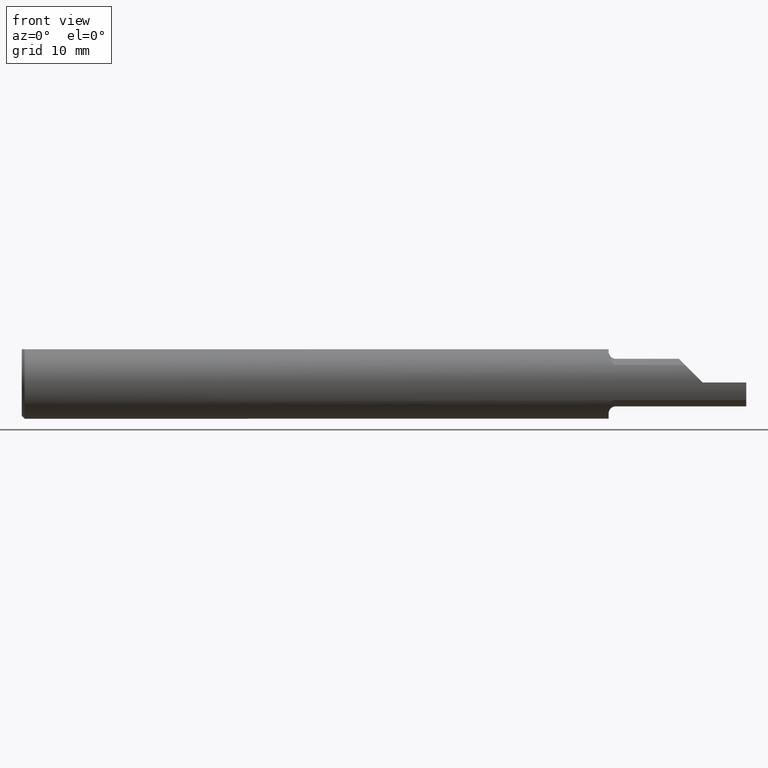
[diagram: clean part render]
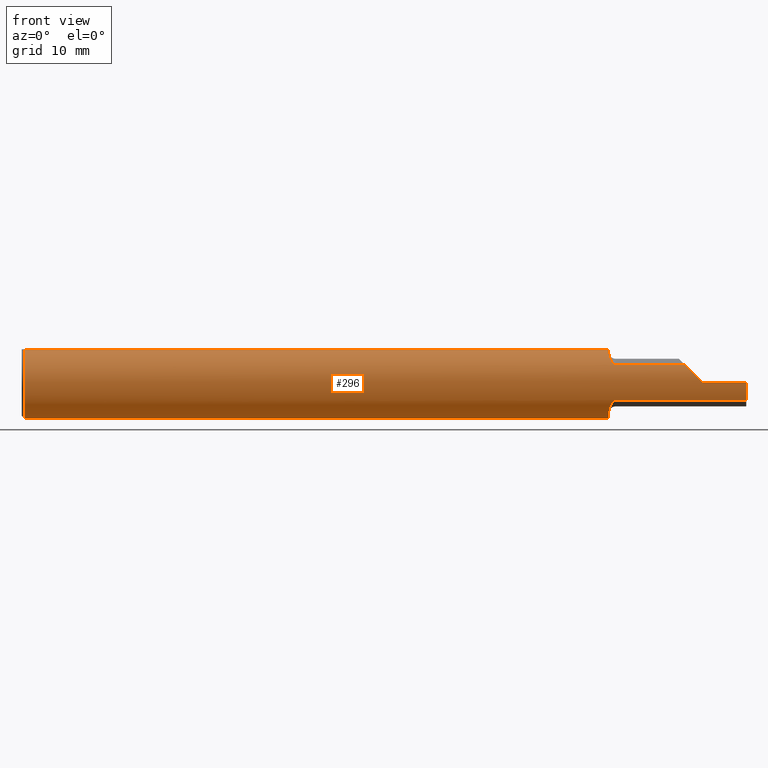
[diagram: same view with one face highlighted and labeled with its STEP entity id]
A machine part, front view. The second image highlights one B-rep face of the part: STEP entity #296.
In plain terms, the highlighted cylindrical surface (edge-blend (fillet) strip) has radius 3.1712 mm, axis along (-1, -0, -0).
Its self-contained STEP definition (entity closure, byte-faithful):
#3 = CARTESIAN_POINT ( 'NONE',  ( 2.024999999999999911, 0.04895916665957469188, 0.1148499999999999521 ) ) ;
#11 = LINE ( 'NONE', #331, #278 ) ;
#20 = ORIENTED_EDGE ( 'NONE', *, *, #344, .T. ) ;
#25 = CARTESIAN_POINT ( 'NONE',  ( 2.033707043473947707, -0.1002470790731815053, -0.07460645910502548828 ) ) ;
#28 = CARTESIAN_POINT ( 'NONE',  ( 2.289520233285355477, -0.1092232590529245567, 0.06047976671464379284 ) ) ;
#34 = EDGE_LOOP ( 'NONE', ( #710, #643, #20, #328, #319, #268, #786, #406, #513, #318, #74, #377, #75 ) ) ;
#44 = VERTEX_POINT ( 'NONE', #715 ) ;
#45 = EDGE_CURVE ( 'NONE', #346, #203, #547, .T. ) ;
#61 = EDGE_CURVE ( 'NONE', #279, #203, #414, .T. ) ;
#67 = CARTESIAN_POINT ( 'NONE',  ( 0.000000000000000000, 0.000000000000000000, 0.000000000000000000 ) ) ;
#71 =( BOUNDED_CURVE ( )  B_SPLINE_CURVE ( 3, ( #446, #197, #693, #28 ),
 .UNSPECIFIED., .F., .F. ) 
 B_SPLINE_CURVE_WITH_KNOTS ( ( 4, 4 ),
 ( 4.712388980384689674, 5.218088401039803870 ),
 .UNSPECIFIED. ) 
 CURVE ( )  GEOMETRIC_REPRESENTATION_ITEM ( )  RATIONAL_B_SPLINE_CURVE ( ( 1.000000000000000000, 0.9788023059027125550, 0.9788023059027125550, 1.000000000000000000 ) ) 
 REPRESENTATION_ITEM ( '' )  );
#72 = CARTESIAN_POINT ( 'NONE',  ( 2.024999999999999911, -0.06535139275765998457, 0.1063800637555461642 ) ) ;
#74 = ORIENTED_EDGE ( 'NONE', *, *, #61, .F. ) ;
#75 = ORIENTED_EDGE ( 'NONE', *, *, #330, .F. ) ;
#81 = CARTESIAN_POINT ( 'NONE',  ( 2.028216217036756586, -0.08893970397226937108, -0.08781254252886035172 ) ) ;
#89 = EDGE_CURVE ( 'NONE', #44, #623, #729, .T. ) ;
#92 = VERTEX_POINT ( 'NONE', #116 ) ;
#94 = CARTESIAN_POINT ( 'NONE',  ( 0.000000000000000000, -0.04895916665957469188, 0.1148499999999999521 ) ) ;
#111 = EDGE_CURVE ( 'NONE', #757, #346, #231, .T. ) ;
#116 = CARTESIAN_POINT ( 'NONE',  ( 2.289520233285355477, -0.1092232590529245567, 0.06047976671464379284 ) ) ;
#121 = CARTESIAN_POINT ( 'NONE',  ( 0.01000000000000014939, 0.04895916665957469188, 0.1148499999999999521 ) ) ;
#128 = CYLINDRICAL_SURFACE ( 'NONE', #669, 0.1248500000000000026 ) ;
#132 = DIRECTION ( 'NONE',  ( 0.000000000000000000, 1.000000000000000000, 0.000000000000000000 ) ) ;
#136 = CARTESIAN_POINT ( 'NONE',  ( 2.027023439373509817, -0.08470251846230676673, -0.09191816578021566597 ) ) ;
#142 = CARTESIAN_POINT ( 'NONE',  ( 2.024999999999999911, -0.07054286491584008112, -0.1031908389701643725 ) ) ;
#149 = CARTESIAN_POINT ( 'NONE',  ( 2.049999999999999822, -0.1092232590529244457, -0.06047976671464396631 ) ) ;
#150 = VERTEX_POINT ( 'NONE', #655 ) ;
#153 = AXIS2_PLACEMENT_3D ( 'NONE', #184, #432, #372 ) ;
#159 = DIRECTION ( 'NONE',  ( 0.000000000000000000, 0.000000000000000000, -1.000000000000000000 ) ) ;
#163 = DIRECTION ( 'NONE',  ( 0.000000000000000000, 0.000000000000000000, 1.000000000000000000 ) ) ;
#168 = DIRECTION ( 'NONE',  ( -1.000000000000000000, -0.000000000000000000, -0.000000000000000000 ) ) ;
#175 = CARTESIAN_POINT ( 'NONE',  ( 2.500000000000000000, 0.000000000000000000, 0.000000000000000000 ) ) ;
#177 = VECTOR ( 'NONE', #572, 39.37007874015748143 ) ;
#184 = CARTESIAN_POINT ( 'NONE',  ( 2.024999999999999911, 0.000000000000000000, 0.000000000000000000 ) ) ;
#192 = CARTESIAN_POINT ( 'NONE',  ( 2.028207506445967478, -0.08891621056625811925, 0.08783733555405218163 ) ) ;
#197 = CARTESIAN_POINT ( 'NONE',  ( 2.328727073528534586, -0.1248500000000000026, 0.02127292647146524981 ) ) ;
#203 = VERTEX_POINT ( 'NONE', #121 ) ;
#212 = CARTESIAN_POINT ( 'NONE',  ( 2.044143490399572105, -0.1083244193956947182, -0.06211342568700094907 ) ) ;
#224 = VERTEX_POINT ( 'NONE', #732 ) ;
#231 = CIRCLE ( 'NONE', #303, 0.1248500000000000026 ) ;
#239 = EDGE_CURVE ( 'NONE', #501, #338, #293, .T. ) ;
#247 = CARTESIAN_POINT ( 'NONE',  ( 2.244015190534282667, -0.1092232590529245290, -0.06047976671464383447 ) ) ;
#250 = FACE_OUTER_BOUND ( 'NONE', #34, .T. ) ;
#256 = CARTESIAN_POINT ( 'NONE',  ( 2.350000000000000089, -0.1248500000000000165, 1.836970198721029441E-17 ) ) ;
#265 = CARTESIAN_POINT ( 'NONE',  ( 2.039872773867706268, -0.1060950243526073977, 0.06584904124472129583 ) ) ;
#268 = ORIENTED_EDGE ( 'NONE', *, *, #744, .F. ) ;
#271 = CARTESIAN_POINT ( 'NONE',  ( 2.031574539397730028, -0.09671433139090004905, -0.07916850176471053324 ) ) ;
#278 = VECTOR ( 'NONE', #568, 39.37007874015748143 ) ;
#279 = VERTEX_POINT ( 'NONE', #3 ) ;
#285 = CARTESIAN_POINT ( 'NONE',  ( 0.01000000000000014939, 0.000000000000000000, 0.000000000000000000 ) ) ;
#290 = DIRECTION ( 'NONE',  ( -1.000000000000000000, -0.000000000000000000, -0.000000000000000000 ) ) ;
#293 = CIRCLE ( 'NONE', #327, 0.1248500000000000026 ) ;
#296 = ADVANCED_FACE ( 'NONE', ( #250 ), #128, .T. ) ;
#300 = LINE ( 'NONE', #247, #614 ) ;
#303 = AXIS2_PLACEMENT_3D ( 'NONE', #709, #410, #159 ) ;
#310 = DIRECTION ( 'NONE',  ( 1.000000000000000000, 1.860231797550329107E-16, 0.000000000000000000 ) ) ;
#318 = ORIENTED_EDGE ( 'NONE', *, *, #45, .T. ) ;
#319 = ORIENTED_EDGE ( 'NONE', *, *, #366, .F. ) ;
#322 = VERTEX_POINT ( 'NONE', #702 ) ;
#327 = AXIS2_PLACEMENT_3D ( 'NONE', #434, #310, #132 ) ;
#328 = ORIENTED_EDGE ( 'NONE', *, *, #792, .T. ) ;
#330 = EDGE_CURVE ( 'NONE', #224, #322, #473, .T. ) ;
#331 = CARTESIAN_POINT ( 'NONE',  ( 2.244015190534282667, -0.1092232590529245290, 0.06047976671464383447 ) ) ;
#338 = VERTEX_POINT ( 'NONE', #72 ) ;
#343 = VECTOR ( 'NONE', #290, 39.37007874015748143 ) ;
#344 = EDGE_CURVE ( 'NONE', #623, #765, #563, .T. ) ;
#346 = VERTEX_POINT ( 'NONE', #644 ) ;
#348 = LINE ( 'NONE', #94, #656 ) ;
#366 = EDGE_CURVE ( 'NONE', #150, #92, #11, .T. ) ;
#368 = AXIS2_PLACEMENT_3D ( 'NONE', #285, #529, #541 ) ;
#372 = DIRECTION ( 'NONE',  ( 0.000000000000000000, 1.000000000000000000, 0.000000000000000000 ) ) ;
#377 = ORIENTED_EDGE ( 'NONE', *, *, #714, .F. ) ;
#387 = CARTESIAN_POINT ( 'NONE',  ( 2.024999999999999911, -0.06535139275765998457, 0.1063800637555461642 ) ) ;
#388 = CARTESIAN_POINT ( 'NONE',  ( 2.046893101175498497, -0.1092232590529244735, -0.06047976671464399406 ) ) ;
#394 = CARTESIAN_POINT ( 'NONE',  ( 2.024999999999999911, -0.06535139275765998457, -0.1063800637555461642 ) ) ;
#400 = CARTESIAN_POINT ( 'NONE',  ( 3.749399456654640735E-32, -0.1248499999999999888, 3.061616997868381169E-16 ) ) ;
#406 = ORIENTED_EDGE ( 'NONE', *, *, #506, .F. ) ;
#410 = DIRECTION ( 'NONE',  ( 1.000000000000000000, 0.000000000000000000, 0.000000000000000000 ) ) ;
#414 = LINE ( 'NONE', #776, #343 ) ;
#424 = DIRECTION ( 'NONE',  ( -1.000000000000000000, -1.860231797550329354E-16, -0.000000000000000000 ) ) ;
#426 = B_SPLINE_CURVE_WITH_KNOTS ( 'NONE', 3,
 ( #387, #638, #451, #685, #192, #455, #689, #576, #265, #504, #562, #511 ),
 .UNSPECIFIED., .F., .F.,
 ( 4, 2, 2, 2, 2, 4 ),
 ( 3.030490085918875282E-05, 0.0004889370798616815561, 0.0009475692588641743391, 0.001406201437866666905, 0.001635517527367912755, 0.001864833616869158604 ),
 .UNSPECIFIED. ) ;
#432 = DIRECTION ( 'NONE',  ( 1.000000000000000000, 1.860231797550329107E-16, 0.000000000000000000 ) ) ;
#434 = CARTESIAN_POINT ( 'NONE',  ( 2.024999999999999911, 0.000000000000000000, 0.000000000000000000 ) ) ;
#437 = DIRECTION ( 'NONE',  ( 0.000000000000000000, 0.000000000000000000, 1.000000000000000000 ) ) ;
#446 = CARTESIAN_POINT ( 'NONE',  ( 2.350000000000000089, -0.1248500000000000165, 1.836970198721029441E-17 ) ) ;
#451 = CARTESIAN_POINT ( 'NONE',  ( 2.025400300771547535, -0.07542150831050724313, 0.09967330204894504775 ) ) ;
#455 = CARTESIAN_POINT ( 'NONE',  ( 2.031572284412210827, -0.09671242829710831324, 0.07917194093600959937 ) ) ;
#456 = CARTESIAN_POINT ( 'NONE',  ( 2.025408339284914483, -0.07550530485030230998, -0.09961131850206352001 ) ) ;
#459 = CIRCLE ( 'NONE', #153, 0.1248500000000000026 ) ;
#470 = CARTESIAN_POINT ( 'NONE',  ( 2.024999999999999911, -0.04895916665957478209, 0.1148499999999999521 ) ) ;
#473 = B_SPLINE_CURVE_WITH_KNOTS ( 'NONE', 3,
 ( #149, #388, #212, #578, #634, #25, #271, #81, #136, #456, #142, #394 ),
 .UNSPECIFIED., .F., .F.,
 ( 4, 2, 2, 2, 2, 4 ),
 ( 1.963893730206510626E-07, 0.0002326901895015428721, 0.0004651839896300651056, 0.0009301715898871100062, 0.001395159190144154961, 0.001860146790401200241 ),
 .UNSPECIFIED. ) ;
#495 = DIRECTION ( 'NONE',  ( -1.000000000000000000, -0.000000000000000000, -0.000000000000000000 ) ) ;
#501 = VERTEX_POINT ( 'NONE', #470 ) ;
#504 = CARTESIAN_POINT ( 'NONE',  ( 2.044142011591955743, -0.1083236330372055328, 0.06211474020593012874 ) ) ;
#506 = EDGE_CURVE ( 'NONE', #757, #501, #348, .T. ) ;
#511 = CARTESIAN_POINT ( 'NONE',  ( 2.049999999999999822, -0.1092232590529244457, 0.06047976671464398019 ) ) ;
#513 = ORIENTED_EDGE ( 'NONE', *, *, #111, .T. ) ;
#529 = DIRECTION ( 'NONE',  ( 1.000000000000000000, 0.000000000000000000, 0.000000000000000000 ) ) ;
#540 = DIRECTION ( 'NONE',  ( 1.000000000000000000, 0.000000000000000000, 0.000000000000000000 ) ) ;
#541 = DIRECTION ( 'NONE',  ( 0.000000000000000000, 0.000000000000000000, -1.000000000000000000 ) ) ;
#547 = CIRCLE ( 'NONE', #368, 0.1248500000000000026 ) ;
#562 = CARTESIAN_POINT ( 'NONE',  ( 2.046904167968482735, -0.1092232590529394892, 0.06047976671461692544 ) ) ;
#563 = LINE ( 'NONE', #400, #177 ) ;
#568 = DIRECTION ( 'NONE',  ( 1.000000000000000000, 1.860231797550329354E-16, 0.000000000000000000 ) ) ;
#572 = DIRECTION ( 'NONE',  ( -1.000000000000000000, -0.000000000000000000, -0.000000000000000000 ) ) ;
#576 = CARTESIAN_POINT ( 'NONE',  ( 2.038167052038310167, -0.1047260336402097841, 0.06802262465471423103 ) ) ;
#578 = CARTESIAN_POINT ( 'NONE',  ( 2.039871114993082823, -0.1060941439957360927, -0.06585051326907756519 ) ) ;
#603 = AXIS2_PLACEMENT_3D ( 'NONE', #175, #168, #163 ) ;
#610 = CARTESIAN_POINT ( 'NONE',  ( 2.500000000000000000, -0.1248500000000000026, 0.000000000000000000 ) ) ;
#614 = VECTOR ( 'NONE', #424, 39.37007874015748143 ) ;
#618 = EDGE_CURVE ( 'NONE', #44, #224, #300, .T. ) ;
#623 = VERTEX_POINT ( 'NONE', #610 ) ;
#634 = CARTESIAN_POINT ( 'NONE',  ( 2.038158879394964984, -0.1047178258151588714, -0.06803468955078945113 ) ) ;
#638 = CARTESIAN_POINT ( 'NONE',  ( 2.024999999999999911, -0.07054241148902899716, 0.1031911175192888053 ) ) ;
#643 = ORIENTED_EDGE ( 'NONE', *, *, #89, .T. ) ;
#644 = CARTESIAN_POINT ( 'NONE',  ( 0.01000000000000014939, 0.000000000000000000, -0.1248500000000000026 ) ) ;
#655 = CARTESIAN_POINT ( 'NONE',  ( 2.049999999999999822, -0.1092232590529244457, 0.06047976671464398019 ) ) ;
#656 = VECTOR ( 'NONE', #540, 39.37007874015748143 ) ;
#669 = AXIS2_PLACEMENT_3D ( 'NONE', #67, #495, #437 ) ;
#685 = CARTESIAN_POINT ( 'NONE',  ( 2.026996939049467539, -0.08458882217984092788, 0.09202120527030382968 ) ) ;
#689 = CARTESIAN_POINT ( 'NONE',  ( 2.033690689866804124, -0.1002306550648288386, 0.07463060118330314130 ) ) ;
#693 = CARTESIAN_POINT ( 'NONE',  ( 2.308130552538913083, -0.1195282781184591053, 0.04186944746108621496 ) ) ;
#702 = CARTESIAN_POINT ( 'NONE',  ( 2.024999999999999911, -0.06535139275765998457, -0.1063800637555461642 ) ) ;
#709 = CARTESIAN_POINT ( 'NONE',  ( 0.01000000000000014939, 0.000000000000000000, 0.000000000000000000 ) ) ;
#710 = ORIENTED_EDGE ( 'NONE', *, *, #618, .F. ) ;
#714 = EDGE_CURVE ( 'NONE', #322, #279, #459, .T. ) ;
#715 = CARTESIAN_POINT ( 'NONE',  ( 2.500000000000000000, -0.1092232590529245290, -0.06047976671464384835 ) ) ;
#729 = CIRCLE ( 'NONE', #603, 0.1248500000000000026 ) ;
#732 = CARTESIAN_POINT ( 'NONE',  ( 2.049999999999999822, -0.1092232590529244457, -0.06047976671464396631 ) ) ;
#744 = EDGE_CURVE ( 'NONE', #338, #150, #426, .T. ) ;
#757 = VERTEX_POINT ( 'NONE', #758 ) ;
#758 = CARTESIAN_POINT ( 'NONE',  ( 0.01000000000000014939, -0.04895916665957469188, 0.1148499999999999521 ) ) ;
#765 = VERTEX_POINT ( 'NONE', #256 ) ;
#776 = CARTESIAN_POINT ( 'NONE',  ( 0.000000000000000000, 0.04895916665957469188, 0.1148499999999999521 ) ) ;
#786 = ORIENTED_EDGE ( 'NONE', *, *, #239, .F. ) ;
#792 = EDGE_CURVE ( 'NONE', #765, #92, #71, .T. ) ;